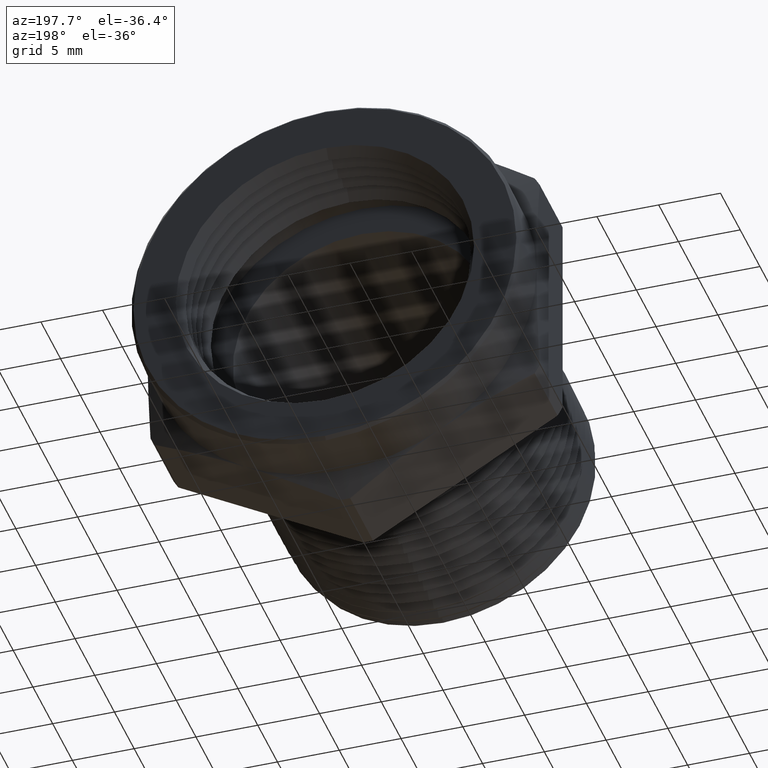
[diagram: clean part render]
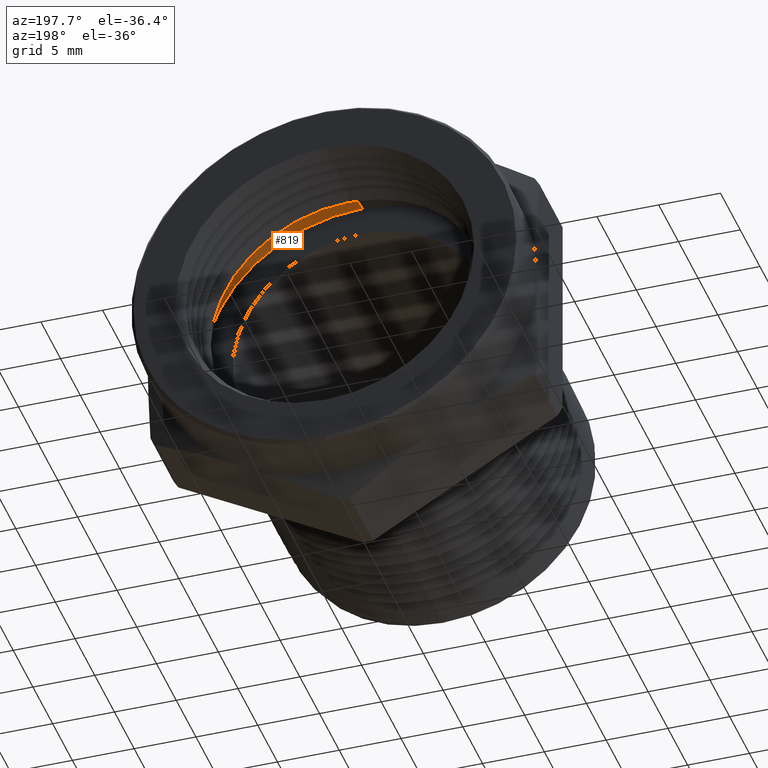
[diagram: same view with one face highlighted and labeled with its STEP entity id]
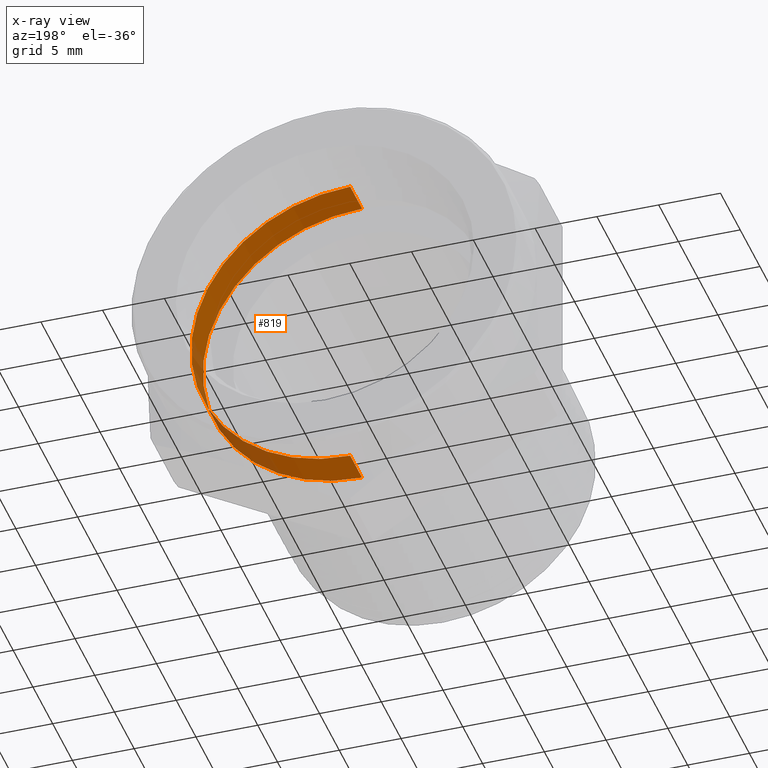
[diagram: x-ray of the same camera — body ghosted, the highlighted face saturated]
A machine part, auxiliary view. The second image highlights one B-rep face of the part: STEP entity #819.
The next image is the same camera in x-ray: the body ghosted, the highlighted face saturated — about 15% of this face is hidden behind the body in this view.
In plain terms, the highlighted cylindrical surface (partial cylindrical patch) has radius 12.8816 mm, axis along (-0, -1, -0).
Its self-contained STEP definition (entity closure, byte-faithful):
#291 = EDGE_CURVE ( 'NONE', #350, #361, #1617, .T. ) ;
#350 = VERTEX_POINT ( 'NONE', #1750 ) ;
#352 = VERTEX_POINT ( 'NONE', #1744 ) ;
#355 = EDGE_CURVE ( 'NONE', #352, #364, #1742, .T. ) ;
#361 = VERTEX_POINT ( 'NONE', #1783 ) ;
#364 = VERTEX_POINT ( 'NONE', #1775 ) ;
#817 = EDGE_CURVE ( 'NONE', #352, #350, #2705, .T. ) ;
#819 = ADVANCED_FACE ( 'NONE', ( #2700 ), #2699, .F. ) ;
#820 = EDGE_LOOP ( 'NONE', ( #872, #873, #874, #875 ) ) ;
#872 = ORIENTED_EDGE ( 'NONE', *, *, #291, .F. ) ;
#873 = ORIENTED_EDGE ( 'NONE', *, *, #817, .F. ) ;
#874 = ORIENTED_EDGE ( 'NONE', *, *, #355, .T. ) ;
#875 = ORIENTED_EDGE ( 'NONE', *, *, #876, .T. ) ;
#876 = EDGE_CURVE ( 'NONE', #364, #361, #2756, .T. ) ;
#1614 = DIRECTION ( 'NONE',  ( -0.0000000000000000000, -1.000000000000000000, -0.0000000000000000000 ) ) ;
#1615 = VECTOR ( 'NONE', #1614, 39.37007874015748100 ) ;
#1616 = CARTESIAN_POINT ( 'NONE',  ( 6.210796241875801000E-017, 0.0000000000000000000, 0.5071499999999999900 ) ) ;
#1617 = LINE ( 'NONE', #1616, #1615 ) ;
#1739 = DIRECTION ( 'NONE',  ( -0.0000000000000000000, -1.000000000000000000, -0.0000000000000000000 ) ) ;
#1740 = VECTOR ( 'NONE', #1739, 39.37007874015748100 ) ;
#1741 = CARTESIAN_POINT ( 'NONE',  ( 0.0000000000000000000, 0.0000000000000000000, -0.5071499999999999900 ) ) ;
#1742 = LINE ( 'NONE', #1741, #1740 ) ;
#1744 = CARTESIAN_POINT ( 'NONE',  ( 0.0000000000000000000, 0.9269999999999998200, -0.5071499999999999900 ) ) ;
#1750 = CARTESIAN_POINT ( 'NONE',  ( 6.210796241875801000E-017, 0.9269999999999998200, 0.5071499999999999900 ) ) ;
#1775 = CARTESIAN_POINT ( 'NONE',  ( 0.0000000000000000000, 0.8089999999999999400, -0.5071499999999999900 ) ) ;
#1783 = CARTESIAN_POINT ( 'NONE',  ( 6.210796241875801000E-017, 0.8089999999999999400, 0.5071499999999999900 ) ) ;
#2694 = DIRECTION ( 'NONE',  ( 0.0000000000000000000, 0.0000000000000000000, -1.000000000000000000 ) ) ;
#2695 = DIRECTION ( 'NONE',  ( -0.0000000000000000000, -1.000000000000000000, -0.0000000000000000000 ) ) ;
#2696 = CARTESIAN_POINT ( 'NONE',  ( 0.0000000000000000000, 0.0000000000000000000, 0.0000000000000000000 ) ) ;
#2697 = AXIS2_PLACEMENT_3D ( 'NONE', #2696, #2695, #2694 ) ;
#2699 = CYLINDRICAL_SURFACE ( 'NONE', #2697, 0.5071499999999999900 ) ;
#2700 = FACE_OUTER_BOUND ( 'NONE', #820, .T. ) ;
#2701 = DIRECTION ( 'NONE',  ( 0.0000000000000000000, 0.0000000000000000000, -1.000000000000000000 ) ) ;
#2702 = DIRECTION ( 'NONE',  ( -0.0000000000000000000, -1.000000000000000000, -0.0000000000000000000 ) ) ;
#2703 = CARTESIAN_POINT ( 'NONE',  ( 0.0000000000000000000, 0.9269999999999998200, 0.0000000000000000000 ) ) ;
#2704 = AXIS2_PLACEMENT_3D ( 'NONE', #2703, #2702, #2701 ) ;
#2705 = CIRCLE ( 'NONE', #2704, 0.5071499999999999900 ) ;
#2748 = DIRECTION ( 'NONE',  ( 0.0000000000000000000, 0.0000000000000000000, -1.000000000000000000 ) ) ;
#2749 = DIRECTION ( 'NONE',  ( -0.0000000000000000000, -1.000000000000000000, -0.0000000000000000000 ) ) ;
#2750 = CARTESIAN_POINT ( 'NONE',  ( 0.0000000000000000000, 0.8089999999999999400, 0.0000000000000000000 ) ) ;
#2751 = AXIS2_PLACEMENT_3D ( 'NONE', #2750, #2749, #2748 ) ;
#2756 = CIRCLE ( 'NONE', #2751, 0.5071499999999999900 ) ;